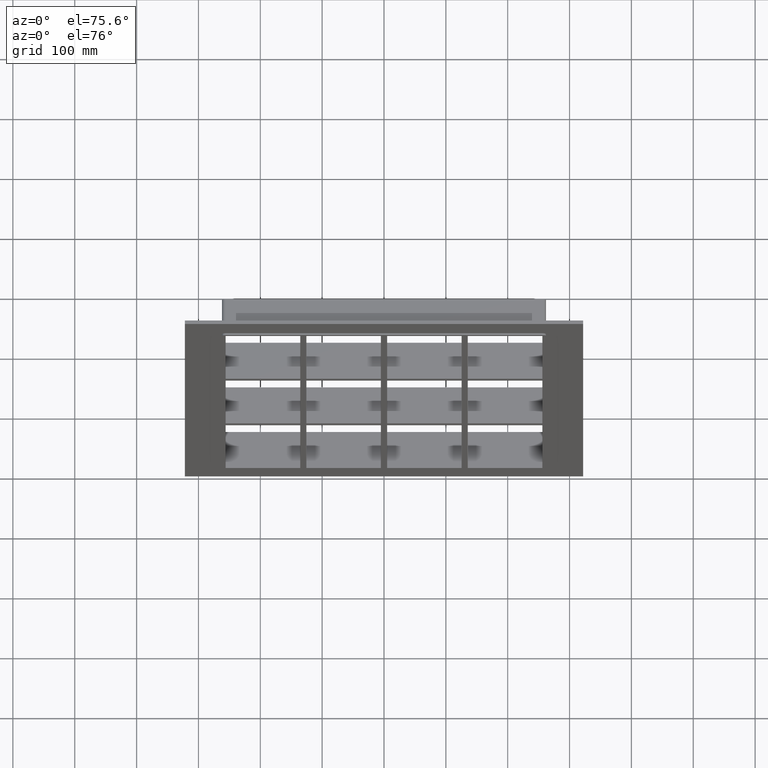
[diagram: clean part render]
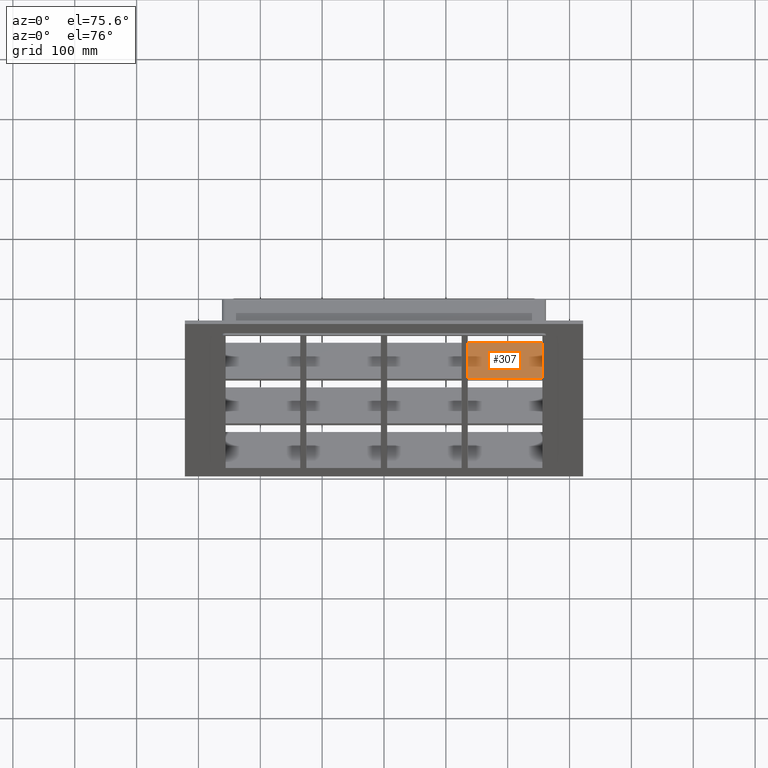
[diagram: same view with one face highlighted and labeled with its STEP entity id]
A machine part, auxiliary view. The second image highlights one B-rep face of the part: STEP entity #307.
In plain terms, the highlighted planar face has unit normal (0, 0, 1).
Its self-contained STEP definition (entity closure, byte-faithful):
#268=CARTESIAN_POINT('',(-255.99999999999969,-3.0,150.99999999999994));
#269=DIRECTION('',(0.0,0.0,1.0));
#270=DIRECTION('',(1.0,0.0,0.0));
#271=AXIS2_PLACEMENT_3D('',#268,#269,#270);
#272=PLANE('',#271);
#273=CARTESIAN_POINT('',(135.50000000000733,-3.0,150.99999999999994));
#274=VERTEX_POINT('',#273);
#275=CARTESIAN_POINT('',(135.50000000000733,57.0,150.99999999999994));
#276=VERTEX_POINT('',#275);
#277=CARTESIAN_POINT('',(135.5000000000073,-3.0,150.99999999999994));
#278=DIRECTION('',(0.0,1.0,0.0));
#279=VECTOR('',#278,60.0);
#280=LINE('',#277,#279);
#281=EDGE_CURVE('',#274,#276,#280,.T.);
#282=ORIENTED_EDGE('',*,*,#281,.F.);
#283=CARTESIAN_POINT('',(255.99999999999991,-3.0,150.99999999999994));
#284=VERTEX_POINT('',#283);
#285=CARTESIAN_POINT('',(135.50000000000736,-3.0,150.99999999999994));
#286=DIRECTION('',(1.0,0.0,0.0));
#287=VECTOR('',#286,120.49999999999255);
#288=LINE('',#285,#287);
#289=EDGE_CURVE('',#274,#284,#288,.T.);
#290=ORIENTED_EDGE('',*,*,#289,.T.);
#291=CARTESIAN_POINT('',(255.99999999999991,57.0,150.99999999999994));
#292=VERTEX_POINT('',#291);
#293=CARTESIAN_POINT('',(256.0,57.000000000000007,150.99999999999994));
#294=DIRECTION('',(0.0,-1.0,0.0));
#295=VECTOR('',#294,60.000000000000007);
#296=LINE('',#293,#295);
#297=EDGE_CURVE('',#292,#284,#296,.T.);
#298=ORIENTED_EDGE('',*,*,#297,.F.);
#299=CARTESIAN_POINT('',(135.50000000000736,57.0,150.99999999999994));
#300=DIRECTION('',(1.0,0.0,0.0));
#301=VECTOR('',#300,120.49999999999255);
#302=LINE('',#299,#301);
#303=EDGE_CURVE('',#276,#292,#302,.T.);
#304=ORIENTED_EDGE('',*,*,#303,.F.);
#305=EDGE_LOOP('',(#282,#290,#298,#304));
#306=FACE_OUTER_BOUND('',#305,.T.);
#307=ADVANCED_FACE('',(#306),#272,.T.);